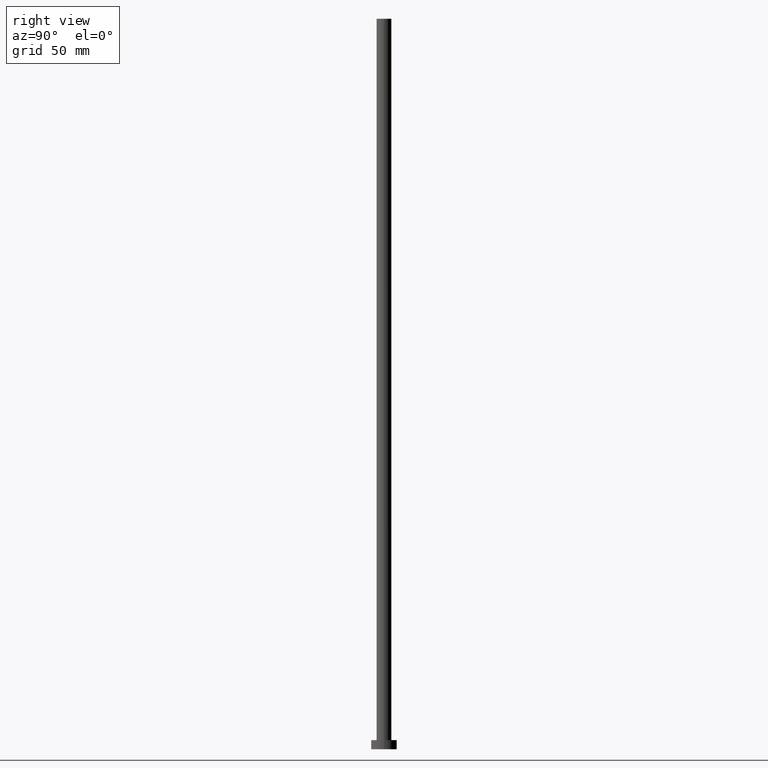
[diagram: clean part render]
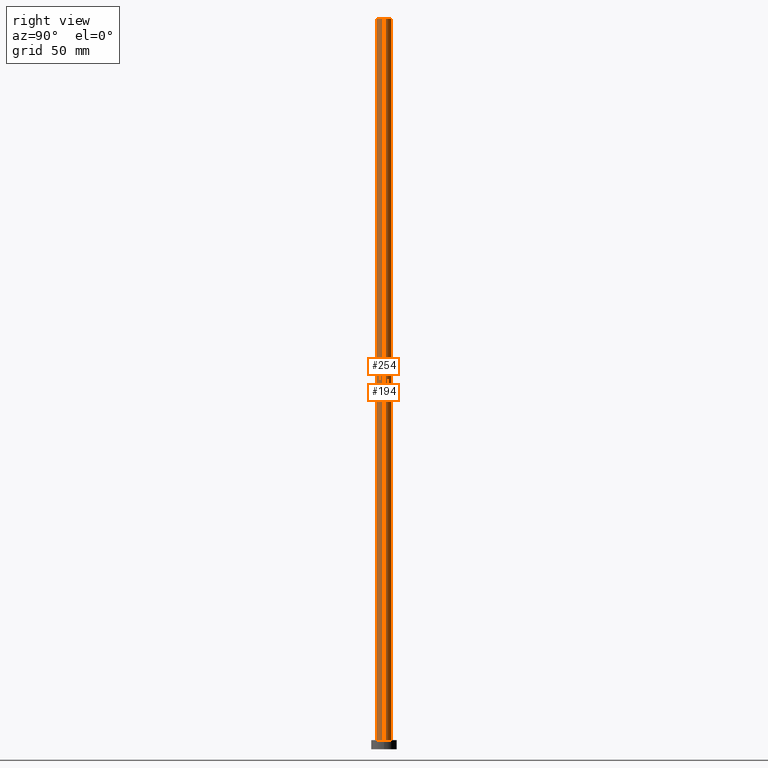
[diagram: same view with one multi-face feature highlighted, each face labeled with its STEP entity id]
A machine part, right view. The highlighted faces form ONE feature: a constant-radius fillet chain: 2 tangent blend faces with common blend radius 4.1 mm. The faces share edges in the B-rep.
Their STEP definitions:
[1] entity #194 (Cylinder):
#4 = EDGE_CURVE ( 'NONE', #16, #231, #185, .T. ) ;
#9 = EDGE_CURVE ( 'NONE', #58, #227, #149, .T. ) ;
#10 = CYLINDRICAL_SURFACE ( 'NONE', #218, 4.099999999999999645 ) ;
#11 = AXIS2_PLACEMENT_3D ( 'NONE', #160, #62, #84 ) ;
#16 = VERTEX_POINT ( 'NONE', #212 ) ;
#24 = ORIENTED_EDGE ( 'NONE', *, *, #9, .T. ) ;
#28 = DIRECTION ( 'NONE',  ( 1.000000000000000000, 0.000000000000000000, 0.000000000000000000 ) ) ;
#33 = ORIENTED_EDGE ( 'NONE', *, *, #175, .F. ) ;
#42 = DIRECTION ( 'NONE',  ( -1.000000000000000000, 0.000000000000000000, 0.000000000000000000 ) ) ;
#51 = DIRECTION ( 'NONE',  ( -0.000000000000000000, -0.000000000000000000, -1.000000000000000000 ) ) ;
#56 = DIRECTION ( 'NONE',  ( -0.000000000000000000, -0.000000000000000000, -1.000000000000000000 ) ) ;
#58 = VERTEX_POINT ( 'NONE', #196 ) ;
#61 = VECTOR ( 'NONE', #51, 1000.000000000000000 ) ;
#62 = DIRECTION ( 'NONE',  ( 0.000000000000000000, 0.000000000000000000, 1.000000000000000000 ) ) ;
#66 = CIRCLE ( 'NONE', #159, 4.099999999999999645 ) ;
#68 = DIRECTION ( 'NONE',  ( -0.000000000000000000, -0.000000000000000000, -1.000000000000000000 ) ) ;
#84 = DIRECTION ( 'NONE',  ( 1.000000000000000000, 0.000000000000000000, 0.000000000000000000 ) ) ;
#88 = EDGE_LOOP ( 'NONE', ( #33, #24, #203, #162 ) ) ;
#100 = CARTESIAN_POINT ( 'NONE',  ( -4.099999999999999645, 0.000000000000000000, 5.000000000000000000 ) ) ;
#122 = CARTESIAN_POINT ( 'NONE',  ( 0.000000000000000000, 0.000000000000000000, 400.0000000000000000 ) ) ;
#124 = DIRECTION ( 'NONE',  ( 0.000000000000000000, 0.000000000000000000, 1.000000000000000000 ) ) ;
#133 = CIRCLE ( 'NONE', #11, 4.099999999999999645 ) ;
#139 = CARTESIAN_POINT ( 'NONE',  ( 0.000000000000000000, 0.000000000000000000, 5.000000000000000000 ) ) ;
#149 = LINE ( 'NONE', #235, #61 ) ;
#153 = CARTESIAN_POINT ( 'NONE',  ( -4.099999999999999645, 0.000000000000000000, 400.0000000000000000 ) ) ;
#159 = AXIS2_PLACEMENT_3D ( 'NONE', #139, #124, #28 ) ;
#160 = CARTESIAN_POINT ( 'NONE',  ( 0.000000000000000000, 0.000000000000000000, 400.0000000000000000 ) ) ;
#162 = ORIENTED_EDGE ( 'NONE', *, *, #4, .F. ) ;
#175 = EDGE_CURVE ( 'NONE', #58, #16, #133, .T. ) ;
#185 = LINE ( 'NONE', #153, #251 ) ;
#194 = ADVANCED_FACE ( 'NONE', ( #230 ), #10, .T. ) ;
#196 = CARTESIAN_POINT ( 'NONE',  ( 4.099999999999999645, 5.021051876504146399E-16, 400.0000000000000000 ) ) ;
#197 = CARTESIAN_POINT ( 'NONE',  ( 4.099999999999999645, 5.021051876504146399E-16, 5.000000000000000000 ) ) ;
#202 = EDGE_CURVE ( 'NONE', #227, #231, #66, .T. ) ;
#203 = ORIENTED_EDGE ( 'NONE', *, *, #202, .T. ) ;
#212 = CARTESIAN_POINT ( 'NONE',  ( -4.099999999999999645, 0.000000000000000000, 400.0000000000000000 ) ) ;
#218 = AXIS2_PLACEMENT_3D ( 'NONE', #122, #56, #42 ) ;
#227 = VERTEX_POINT ( 'NONE', #197 ) ;
#230 = FACE_OUTER_BOUND ( 'NONE', #88, .T. ) ;
#231 = VERTEX_POINT ( 'NONE', #100 ) ;
#235 = CARTESIAN_POINT ( 'NONE',  ( 4.099999999999999645, 5.021051876504146399E-16, 400.0000000000000000 ) ) ;
#251 = VECTOR ( 'NONE', #68, 1000.000000000000000 ) ;
[2] entity #254 (Cylinder):
#4 = EDGE_CURVE ( 'NONE', #16, #231, #185, .T. ) ;
#9 = EDGE_CURVE ( 'NONE', #58, #227, #149, .T. ) ;
#16 = VERTEX_POINT ( 'NONE', #212 ) ;
#17 = CIRCLE ( 'NONE', #98, 4.099999999999999645 ) ;
#26 = EDGE_CURVE ( 'NONE', #16, #58, #79, .T. ) ;
#27 = DIRECTION ( 'NONE',  ( 0.000000000000000000, 0.000000000000000000, 1.000000000000000000 ) ) ;
#44 = EDGE_LOOP ( 'NONE', ( #104, #86, #250, #201 ) ) ;
#51 = DIRECTION ( 'NONE',  ( -0.000000000000000000, -0.000000000000000000, -1.000000000000000000 ) ) ;
#53 = DIRECTION ( 'NONE',  ( 0.000000000000000000, 0.000000000000000000, 1.000000000000000000 ) ) ;
#57 = DIRECTION ( 'NONE',  ( -1.000000000000000000, 0.000000000000000000, 0.000000000000000000 ) ) ;
#58 = VERTEX_POINT ( 'NONE', #196 ) ;
#59 = CARTESIAN_POINT ( 'NONE',  ( 0.000000000000000000, 0.000000000000000000, 400.0000000000000000 ) ) ;
#61 = VECTOR ( 'NONE', #51, 1000.000000000000000 ) ;
#68 = DIRECTION ( 'NONE',  ( -0.000000000000000000, -0.000000000000000000, -1.000000000000000000 ) ) ;
#79 = CIRCLE ( 'NONE', #237, 4.099999999999999645 ) ;
#86 = ORIENTED_EDGE ( 'NONE', *, *, #26, .F. ) ;
#98 = AXIS2_PLACEMENT_3D ( 'NONE', #226, #27, #102 ) ;
#100 = CARTESIAN_POINT ( 'NONE',  ( -4.099999999999999645, 0.000000000000000000, 5.000000000000000000 ) ) ;
#102 = DIRECTION ( 'NONE',  ( 1.000000000000000000, 0.000000000000000000, 0.000000000000000000 ) ) ;
#104 = ORIENTED_EDGE ( 'NONE', *, *, #9, .F. ) ;
#149 = LINE ( 'NONE', #235, #61 ) ;
#153 = CARTESIAN_POINT ( 'NONE',  ( -4.099999999999999645, 0.000000000000000000, 400.0000000000000000 ) ) ;
#161 = EDGE_CURVE ( 'NONE', #231, #227, #17, .T. ) ;
#163 = FACE_OUTER_BOUND ( 'NONE', #44, .T. ) ;
#167 = AXIS2_PLACEMENT_3D ( 'NONE', #59, #247, #57 ) ;
#185 = LINE ( 'NONE', #153, #251 ) ;
#196 = CARTESIAN_POINT ( 'NONE',  ( 4.099999999999999645, 5.021051876504146399E-16, 400.0000000000000000 ) ) ;
#197 = CARTESIAN_POINT ( 'NONE',  ( 4.099999999999999645, 5.021051876504146399E-16, 5.000000000000000000 ) ) ;
#201 = ORIENTED_EDGE ( 'NONE', *, *, #161, .T. ) ;
#212 = CARTESIAN_POINT ( 'NONE',  ( -4.099999999999999645, 0.000000000000000000, 400.0000000000000000 ) ) ;
#214 = CARTESIAN_POINT ( 'NONE',  ( 0.000000000000000000, 0.000000000000000000, 400.0000000000000000 ) ) ;
#217 = DIRECTION ( 'NONE',  ( 1.000000000000000000, 0.000000000000000000, 0.000000000000000000 ) ) ;
#226 = CARTESIAN_POINT ( 'NONE',  ( 0.000000000000000000, 0.000000000000000000, 5.000000000000000000 ) ) ;
#227 = VERTEX_POINT ( 'NONE', #197 ) ;
#231 = VERTEX_POINT ( 'NONE', #100 ) ;
#235 = CARTESIAN_POINT ( 'NONE',  ( 4.099999999999999645, 5.021051876504146399E-16, 400.0000000000000000 ) ) ;
#237 = AXIS2_PLACEMENT_3D ( 'NONE', #214, #53, #217 ) ;
#246 = CYLINDRICAL_SURFACE ( 'NONE', #167, 4.099999999999999645 ) ;
#247 = DIRECTION ( 'NONE',  ( -0.000000000000000000, -0.000000000000000000, -1.000000000000000000 ) ) ;
#250 = ORIENTED_EDGE ( 'NONE', *, *, #4, .T. ) ;
#251 = VECTOR ( 'NONE', #68, 1000.000000000000000 ) ;
#254 = ADVANCED_FACE ( 'NONE', ( #163 ), #246, .T. ) ;